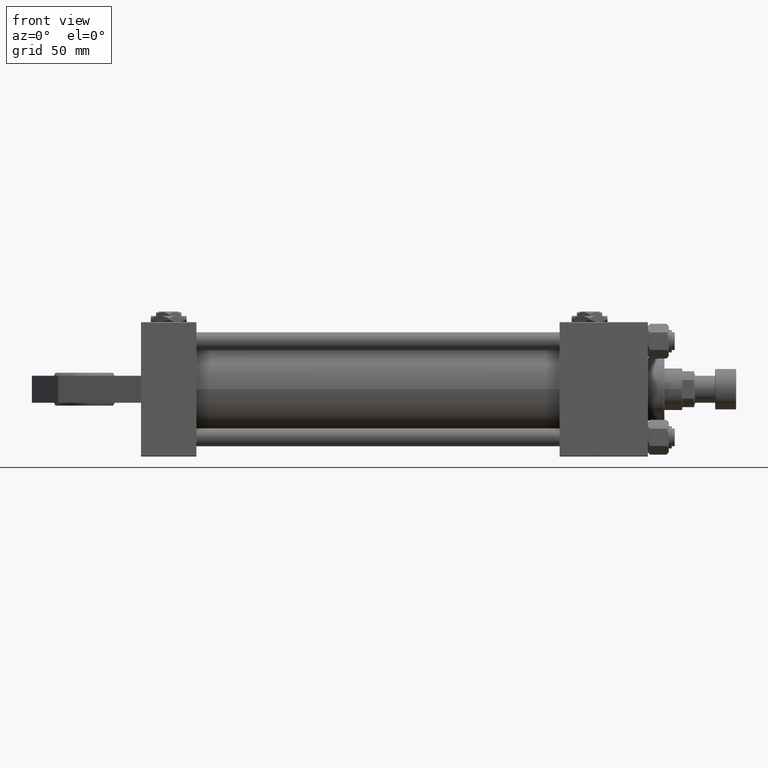
[diagram: clean part render]
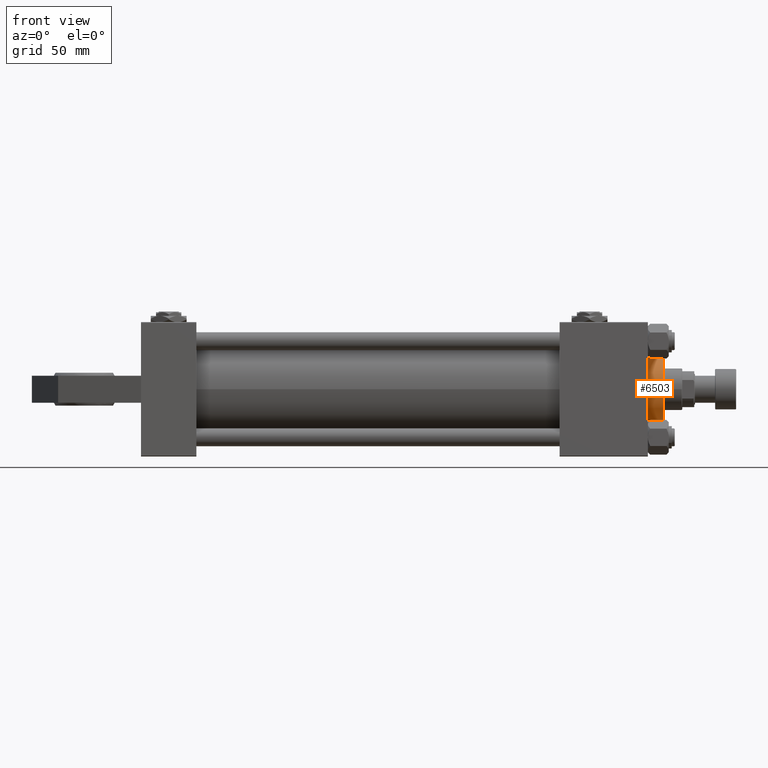
[diagram: same view with one face highlighted and labeled with its STEP entity id]
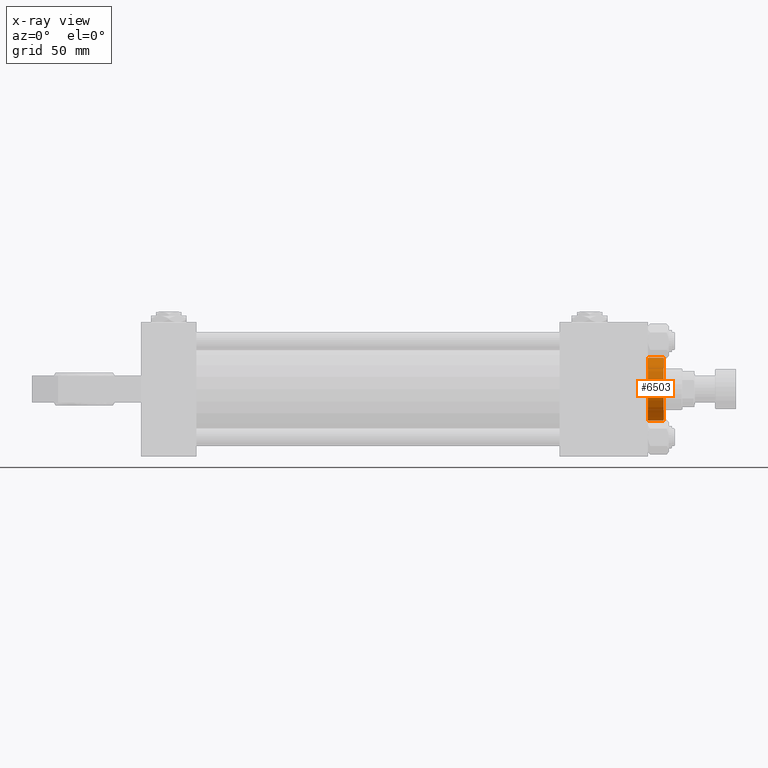
[diagram: x-ray of the same camera — body ghosted, the highlighted face saturated]
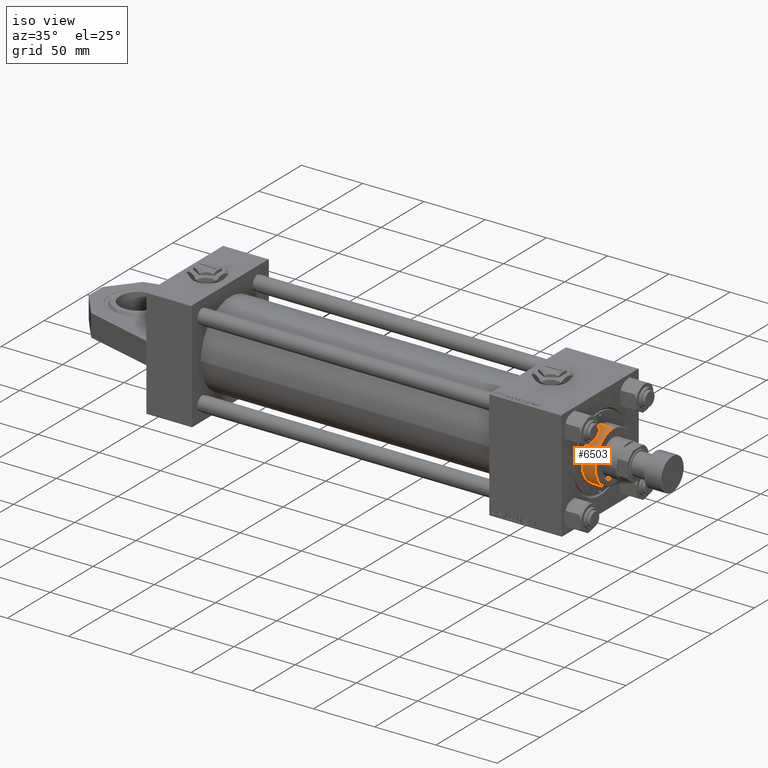
[diagram: same view with one face highlighted and labeled with its STEP entity id]
A machine part, front view. The second image highlights one B-rep face of the part: STEP entity #6503.
The next image is the same camera in x-ray: the body ghosted, the highlighted face saturated — about 0% of this face is hidden behind the body in this view.
A second angle (iso view) of the same face is appended — the face is thin or edge-on in the first view.
In plain terms, the highlighted cylindrical surface (edge-blend (fillet) strip) has radius 21 mm, axis along (-1, -0, 0).
Its self-contained STEP definition (entity closure, byte-faithful):
#20 = ORIENTED_EDGE ( 'NONE', *, *, #36158, .T. ) ;
#204 = DIRECTION ( 'NONE',  ( -0.000000000000000000, -0.000000000000000000, -1.000000000000000000 ) ) ;
#1732 = DIRECTION ( 'NONE',  ( 0.000000000000000000, 0.000000000000000000, 1.000000000000000000 ) ) ;
#3245 = CIRCLE ( 'NONE', #52565, 21.00000000000000000 ) ;
#4955 = VERTEX_POINT ( 'NONE', #48301 ) ;
#5241 = EDGE_CURVE ( 'NONE', #34614, #16042, #51126, .T. ) ;
#5604 = DIRECTION ( 'NONE',  ( 0.000000000000000000, 0.000000000000000000, -1.000000000000000000 ) ) ;
#6503 = ADVANCED_FACE ( 'NONE', ( #40190 ), #36709, .T. ) ;
#6670 = ORIENTED_EDGE ( 'NONE', *, *, #5241, .T. ) ;
#9741 = DIRECTION ( 'NONE',  ( 1.000000000000000000, 0.000000000000000000, 0.000000000000000000 ) ) ;
#12935 = CARTESIAN_POINT ( 'NONE',  ( 0.000000000000000000, 0.000000000000000000, 26.69999999999999929 ) ) ;
#14335 = ORIENTED_EDGE ( 'NONE', *, *, #37428, .F. ) ;
#14823 = CIRCLE ( 'NONE', #44599, 21.00000000000000000 ) ;
#16042 = VERTEX_POINT ( 'NONE', #36561 ) ;
#18593 = CARTESIAN_POINT ( 'NONE',  ( -21.00000000000000000, 0.000000000000000000, 37.19999999999999574 ) ) ;
#19423 = CARTESIAN_POINT ( 'NONE',  ( -21.00000000000000000, 0.000000000000000000, 37.69999999999999574 ) ) ;
#20738 = CARTESIAN_POINT ( 'NONE',  ( 0.000000000000000000, 0.000000000000000000, 37.69999999999999574 ) ) ;
#21881 = DIRECTION ( 'NONE',  ( 1.000000000000000000, 0.000000000000000000, 0.000000000000000000 ) ) ;
#22747 = EDGE_LOOP ( 'NONE', ( #14335, #41888, #6670, #20 ) ) ;
#22931 = DIRECTION ( 'NONE',  ( -0.000000000000000000, -0.000000000000000000, -1.000000000000000000 ) ) ;
#23596 = VERTEX_POINT ( 'NONE', #26291 ) ;
#24297 = EDGE_CURVE ( 'NONE', #4955, #34614, #14823, .T. ) ;
#26291 = CARTESIAN_POINT ( 'NONE',  ( 21.00000000000000000, 2.571758278209441661E-15, 26.69999999999999929 ) ) ;
#26660 = CARTESIAN_POINT ( 'NONE',  ( 21.00000000000000000, 2.571758278209441661E-15, 37.69999999999999574 ) ) ;
#30512 = VECTOR ( 'NONE', #34892, 1000.000000000000000 ) ;
#34614 = VERTEX_POINT ( 'NONE', #18593 ) ;
#34892 = DIRECTION ( 'NONE',  ( -0.000000000000000000, -0.000000000000000000, -1.000000000000000000 ) ) ;
#34921 = LINE ( 'NONE', #26660, #38164 ) ;
#36158 = EDGE_CURVE ( 'NONE', #16042, #23596, #3245, .T. ) ;
#36561 = CARTESIAN_POINT ( 'NONE',  ( -21.00000000000000000, 0.000000000000000000, 26.69999999999999929 ) ) ;
#36709 = CYLINDRICAL_SURFACE ( 'NONE', #48454, 21.00000000000000000 ) ;
#37428 = EDGE_CURVE ( 'NONE', #4955, #23596, #34921, .T. ) ;
#38164 = VECTOR ( 'NONE', #22931, 1000.000000000000000 ) ;
#40190 = FACE_OUTER_BOUND ( 'NONE', #22747, .T. ) ;
#41888 = ORIENTED_EDGE ( 'NONE', *, *, #24297, .T. ) ;
#42110 = CARTESIAN_POINT ( 'NONE',  ( 0.000000000000000000, 0.000000000000000000, 37.19999999999999574 ) ) ;
#44599 = AXIS2_PLACEMENT_3D ( 'NONE', #42110, #5604, #21881 ) ;
#48185 = DIRECTION ( 'NONE',  ( -1.000000000000000000, 0.000000000000000000, 0.000000000000000000 ) ) ;
#48301 = CARTESIAN_POINT ( 'NONE',  ( 21.00000000000000000, 2.571758278209441661E-15, 37.19999999999999574 ) ) ;
#48454 = AXIS2_PLACEMENT_3D ( 'NONE', #20738, #204, #48185 ) ;
#51126 = LINE ( 'NONE', #19423, #30512 ) ;
#52565 = AXIS2_PLACEMENT_3D ( 'NONE', #12935, #1732, #9741 ) ;